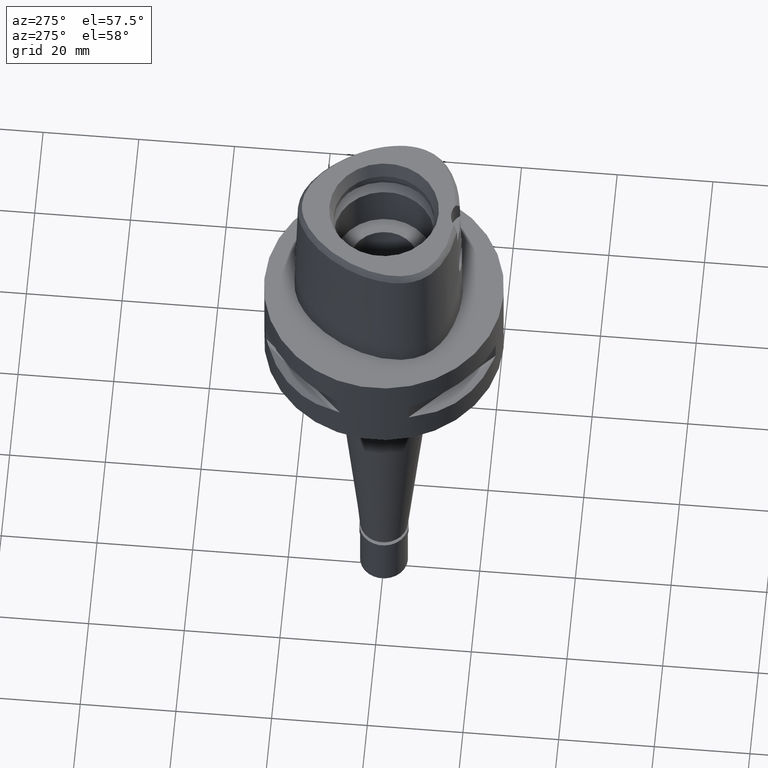
[diagram: clean part render]
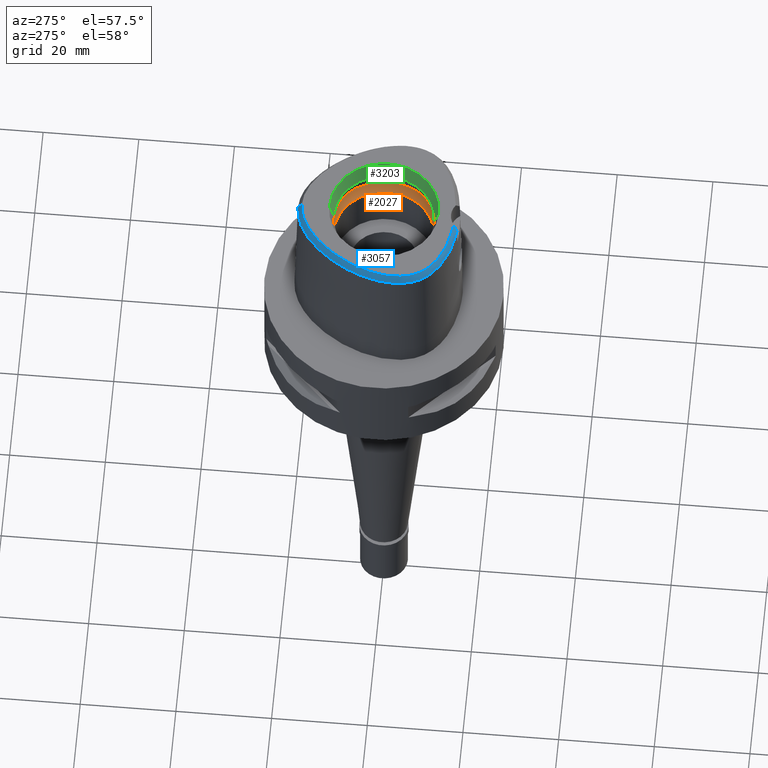
[diagram: same view with three faces highlighted in distinct colors, each labeled with its STEP entity id]
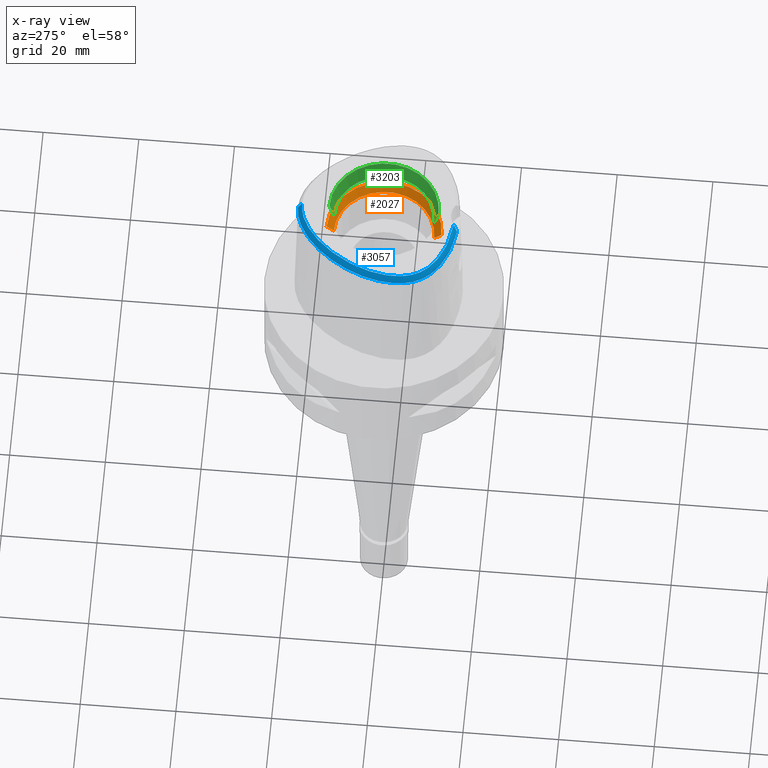
[diagram: x-ray of the same camera — body ghosted, the three highlighted faces saturated]
A machine part, auxiliary view with three faces highlighted in distinct colors.
The next image is the same camera in x-ray (body ghosted, the three faces saturated) — at least one of them is partly hidden behind the body in this view.
Their STEP definitions:

[orange] entity #2027 — the highlighted conical surface has half-angle 45 deg.
#406 = CARTESIAN_POINT ( 'NONE',  ( 0.0000000000000000000, 12.00000000000000000, 21.90089161527999906 ) ) ;
#486 = VERTEX_POINT ( 'NONE', #3220 ) ;
#649 = AXIS2_PLACEMENT_3D ( 'NONE', #4169, #1111, #2990 ) ;
#900 = CARTESIAN_POINT ( 'NONE',  ( 0.0000000000000000000, 1.483670516304999789E-14, 21.90089161527999906 ) ) ;
#1111 = DIRECTION ( 'NONE',  ( 0.0000000000000000000, 0.0000000000000000000, 1.000000000000000000 ) ) ;
#1119 = ORIENTED_EDGE ( 'NONE', *, *, #3971, .T. ) ;
#1422 = CONICAL_SURFACE ( 'NONE', #1811, 11.25000000000000000, 0.7853981633972997312 ) ;
#1482 = VERTEX_POINT ( 'NONE', #4291 ) ;
#1672 = ORIENTED_EDGE ( 'NONE', *, *, #2973, .F. ) ;
#1701 = CARTESIAN_POINT ( 'NONE',  ( 0.0000000000000000000, -10.50000000000000000, 20.40089161527999906 ) ) ;
#1811 = AXIS2_PLACEMENT_3D ( 'NONE', #4452, #2967, #2333 ) ;
#1875 = ORIENTED_EDGE ( 'NONE', *, *, #4474, .F. ) ;
#2005 = EDGE_CURVE ( 'NONE', #3899, #486, #4283, .T. ) ;
#2027 = ADVANCED_FACE ( 'NONE', ( #3010 ), #1422, .F. ) ;
#2277 = EDGE_LOOP ( 'NONE', ( #1875, #1119, #3849, #1672 ) ) ;
#2333 = DIRECTION ( 'NONE',  ( 0.0000000000000000000, 1.000000000000000000, 0.0000000000000000000 ) ) ;
#2420 = VECTOR ( 'NONE', #4780, 1000.000000000000114 ) ;
#2704 = DIRECTION ( 'NONE',  ( 0.0000000000000000000, 0.7071067811865474617, -0.7071067811865474617 ) ) ;
#2758 = DIRECTION ( 'NONE',  ( 0.0000000000000000000, 1.000000000000000000, 0.0000000000000000000 ) ) ;
#2780 = DIRECTION ( 'NONE',  ( 0.0000000000000000000, 0.0000000000000000000, -1.000000000000000000 ) ) ;
#2881 = VECTOR ( 'NONE', #2704, 1000.000000000000114 ) ;
#2921 = LINE ( 'NONE', #406, #2420 ) ;
#2967 = DIRECTION ( 'NONE',  ( 0.0000000000000000000, 0.0000000000000000000, 1.000000000000000000 ) ) ;
#2973 = EDGE_CURVE ( 'NONE', #1482, #3899, #3374, .T. ) ;
#2990 = DIRECTION ( 'NONE',  ( 0.0000000000000000000, -1.000000000000000000, 0.0000000000000000000 ) ) ;
#3010 = FACE_OUTER_BOUND ( 'NONE', #2277, .T. ) ;
#3128 = AXIS2_PLACEMENT_3D ( 'NONE', #900, #2780, #2758 ) ;
#3220 = CARTESIAN_POINT ( 'NONE',  ( 0.0000000000000000000, 10.50000000000000000, 20.40089161527999906 ) ) ;
#3374 = LINE ( 'NONE', #3442, #2881 ) ;
#3442 = CARTESIAN_POINT ( 'NONE',  ( 0.0000000000000000000, -12.00000000000000000, 21.90089161527999906 ) ) ;
#3849 = ORIENTED_EDGE ( 'NONE', *, *, #2005, .F. ) ;
#3880 = VERTEX_POINT ( 'NONE', #4363 ) ;
#3899 = VERTEX_POINT ( 'NONE', #1701 ) ;
#3971 = EDGE_CURVE ( 'NONE', #3880, #486, #2921, .T. ) ;
#4169 = CARTESIAN_POINT ( 'NONE',  ( 0.0000000000000000000, 1.483670516304999789E-14, 20.40089161527999906 ) ) ;
#4283 = CIRCLE ( 'NONE', #649, 10.50000000000000000 ) ;
#4291 = CARTESIAN_POINT ( 'NONE',  ( 0.0000000000000000000, -12.00000000000000000, 21.90089161527999906 ) ) ;
#4363 = CARTESIAN_POINT ( 'NONE',  ( 0.0000000000000000000, 12.00000000000000000, 21.90089161527999906 ) ) ;
#4452 = CARTESIAN_POINT ( 'NONE',  ( 0.0000000000000000000, 1.483670516304999789E-14, 21.15089161527999906 ) ) ;
#4474 = EDGE_CURVE ( 'NONE', #3880, #1482, #4719, .T. ) ;
#4719 = CIRCLE ( 'NONE', #3128, 12.00000000000000000 ) ;
#4780 = DIRECTION ( 'NONE',  ( 0.0000000000000000000, -0.7071067811865474617, -0.7071067811865474617 ) ) ;

[blue] entity #3057 — the highlighted face is a freeform B-spline surface patch.
#16 = CARTESIAN_POINT ( 'NONE',  ( -11.85449009044000057, 9.011503292406001009, 30.15637878581999942 ) ) ;
#37 = CARTESIAN_POINT ( 'NONE',  ( -11.58345987647000008, 10.54187516824999982, 28.96164332916999840 ) ) ;
#56 = CARTESIAN_POINT ( 'NONE',  ( -7.700642921101196414, 13.84415306341368535, 29.99999999999799982 ) ) ;
#57 = CARTESIAN_POINT ( 'NONE',  ( -8.901651592760000398, -13.56634964851000014, 29.55901088555999934 ) ) ;
#82 = CARTESIAN_POINT ( 'NONE',  ( -4.498660734198334232, 15.99814720006281021, 29.99999999999908340 ) ) ;
#85 = CARTESIAN_POINT ( 'NONE',  ( -13.23255850189000071, -11.83726526318000083, 28.36427467868999841 ) ) ;
#107 = CARTESIAN_POINT ( 'NONE',  ( -2.674237912645970106, -15.00654602983763297, 29.59847415412812666 ) ) ;
#108 = CARTESIAN_POINT ( 'NONE',  ( -3.771910472264914382, 16.33551310926166522, 29.99999999999630163 ) ) ;
#109 = CARTESIAN_POINT ( 'NONE',  ( -12.18965241865999971, -11.79359031717000050, 29.55901110125000031 ) ) ;
#136 = CARTESIAN_POINT ( 'NONE',  ( -15.43355893678000079, -7.121679643271999538, 30.15637888211999851 ) ) ;
#140 = CARTESIAN_POINT ( 'NONE',  ( -11.33338053121714850, -13.08225253589606574, 28.52071192347005635 ) ) ;
#163 = CARTESIAN_POINT ( 'NONE',  ( -16.59402944986000250, -6.782580414183000173, 28.36427473218000372 ) ) ;
#166 = CARTESIAN_POINT ( 'NONE',  ( -13.75951393052431904, 7.944084103041955558, 28.52071192347005635 ) ) ;
#195 = CARTESIAN_POINT ( 'NONE',  ( -5.213656566127999881, 15.51079692067999893, 30.15637829171000206 ) ) ;
#211 = CARTESIAN_POINT ( 'NONE',  ( -4.242257001799000449, -15.17389382144999921, 28.96164249563000226 ) ) ;
#217 = CARTESIAN_POINT ( 'NONE',  ( -0.6320141646056000040, 18.05501569523999805, 28.36427460964999980 ) ) ;
#238 = CARTESIAN_POINT ( 'NONE',  ( 0.3266156067013999964, 17.73054850272000138, 28.96164286856000203 ) ) ;
#259 = CARTESIAN_POINT ( 'NONE',  ( -6.892235619470000074, -14.94426334862999894, 28.36427880345000219 ) ) ;
#262 = CARTESIAN_POINT ( 'NONE',  ( -16.85489160761226657, -5.354527567565032342, 28.52071192347005635 ) ) ;
#265 = CARTESIAN_POINT ( 'NONE',  ( -8.958407427298999082, 13.49571848031999899, 28.96164451534999884 ) ) ;
#285 = CARTESIAN_POINT ( 'NONE',  ( -10.08889300208999984, 12.83372184761999968, 28.36427664305999841 ) ) ;
#306 = CARTESIAN_POINT ( 'NONE',  ( -16.47661857384000328, -0.5221629644570000561, 28.96164353778999967 ) ) ;
#334 = CARTESIAN_POINT ( 'NONE',  ( -16.04083576397579947, -1.656498942829044418, 29.99999999999349853 ) ) ;
#336 = CARTESIAN_POINT ( 'NONE',  ( -14.78827924295000074, 4.204707615648000996, 29.55901083216999936 ) ) ;
#361 = CARTESIAN_POINT ( 'NONE',  ( -15.39727819200625802, 1.655076005305519127, 30.00000000000022737 ) ) ;
#363 = CARTESIAN_POINT ( 'NONE',  ( -14.53919839125000024, 5.621544639343000860, 28.96164349151000295 ) ) ;
#385 = CARTESIAN_POINT ( 'NONE',  ( -16.90742036453000452, -5.282604690685999138, 28.36427490836999965 ) ) ;
#409 = CARTESIAN_POINT ( 'NONE',  ( -6.862723739080156982, 14.51536572208542708, 30.00000000000209965 ) ) ;
#411 = CARTESIAN_POINT ( 'NONE',  ( -16.27982495361000304, 1.903506352979000171, 28.36427837258000295 ) ) ;
#416 = CARTESIAN_POINT ( 'NONE',  ( 0.4586054201233999983, 17.05353403294000003, 30.15637893910000145 ) ) ;
#431 = CARTESIAN_POINT ( 'NONE',  ( -2.411640998825414162, 16.81591728050937107, 29.99999999999823430 ) ) ;
#432 = CARTESIAN_POINT ( 'NONE',  ( -11.03811784440999944, -13.30293777031000069, 28.36427474825000061 ) ) ;
#455 = CARTESIAN_POINT ( 'NONE',  ( -14.79025911483000044, -10.28768672424999941, 28.36427535253999821 ) ) ;
#484 = CARTESIAN_POINT ( 'NONE',  ( -14.33216694691000015, -10.81101575921000091, 28.36427475559000300 ) ) ;
#507 = CARTESIAN_POINT ( 'NONE',  ( -16.13424403715000111, -8.084696325639999515, 28.36427519935000063 ) ) ;
#533 = CARTESIAN_POINT ( 'NONE',  ( -14.68836182623000042, -8.699025554961000495, 30.15637889597000054 ) ) ;
#581 = CARTESIAN_POINT ( 'NONE',  ( -3.168920966622999824, -15.55911077538999976, 28.52071192346999950 ) ) ;
#588 = CARTESIAN_POINT ( 'NONE',  ( -6.184650785969999731, 15.29958322959999961, 29.55901192772000030 ) ) ;
#601 = CARTESIAN_POINT ( 'NONE',  ( -4.136676695918000135, -14.51261939415000057, 30.15637896186999711 ) ) ;
#603 = CARTESIAN_POINT ( 'NONE',  ( -4.422474562381692564, 17.08283562090188212, 28.52071192347005635 ) ) ;
#606 = CARTESIAN_POINT ( 'NONE',  ( -6.556570469133999879, 15.85654306089999821, 28.36427870975999710 ) ) ;
#630 = CARTESIAN_POINT ( 'NONE',  ( -16.08550869467322286, -4.376322360225803010, 30.00000000000392930 ) ) ;
#631 = CARTESIAN_POINT ( 'NONE',  ( -3.047966609381999703, 16.52305199151999915, 30.15637900589000253 ) ) ;
#654 = CARTESIAN_POINT ( 'NONE',  ( -12.04571048959943269, -11.59259605427425122, 30.00000000000039080 ) ) ;
#655 = CARTESIAN_POINT ( 'NONE',  ( -1.961401802194999933, 17.86945691829000182, 28.36427515685999978 ) ) ;
#675 = CARTESIAN_POINT ( 'NONE',  ( -15.51623783590678940, -7.150856098906794855, 29.99999999999204903 ) ) ;
#677 = CARTESIAN_POINT ( 'NONE',  ( -15.99810560885000044, -4.369539868912998948, 30.15637881170000156 ) ) ;
#700 = CARTESIAN_POINT ( 'NONE',  ( -2.406542353497000075, -14.80491723099000012, 30.00000000000000000 ) ) ;
#701 = CARTESIAN_POINT ( 'NONE',  ( -16.44286601343999976, -5.991043962840000070, 28.96164272796000105 ) ) ;
#726 = CARTESIAN_POINT ( 'NONE',  ( -15.90223487644045619, -0.6162487013687821813, 29.99999999999139888 ) ) ;
#727 = CARTESIAN_POINT ( 'NONE',  ( -13.18530981801000124, 8.169366053974998820, 28.96164285982999687 ) ) ;
#744 = CARTESIAN_POINT ( 'NONE',  ( -16.77070615170000067, -6.059465517459999617, 28.36427462849999870 ) ) ;
#769 = CARTESIAN_POINT ( 'NONE',  ( -15.81573140731999949, -0.6304182237184999815, 30.15637880491000189 ) ) ;
#799 = CARTESIAN_POINT ( 'NONE',  ( -11.84982355095999829, -12.82801559877999864, 28.36427544980000093 ) ) ;
#821 = CARTESIAN_POINT ( 'NONE',  ( -15.21180331474000091, -7.686336543309999492, 30.15637887229999947 ) ) ;
#841 = CARTESIAN_POINT ( 'NONE',  ( -8.067688644478000271, -14.58611186006000082, 28.36427808795000161 ) ) ;
#850 = VERTEX_POINT ( 'NONE', #3771 ) ;
#871 = CARTESIAN_POINT ( 'NONE',  ( -11.67222070731000017, -12.54411384152999887, 28.96164324932000156 ) ) ;
#875 = CARTESIAN_POINT ( 'NONE',  ( -3.168920966622999824, -15.55911077538999976, 28.52071192346999950 ) ) ;
#897 = CARTESIAN_POINT ( 'NONE',  ( -12.80858359052000139, -11.31873791347000058, 29.55901084095000186 ) ) ;
#919 = CARTESIAN_POINT ( 'NONE',  ( -15.07117015427825635, -9.793013966485284882, 28.52071192347005635 ) ) ;
#948 = CARTESIAN_POINT ( 'NONE',  ( -5.551456711844000580, 16.08910894061000008, 28.96164694548000185 ) ) ;
#970 = CARTESIAN_POINT ( 'NONE',  ( -1.754857535134000113, 16.88615794000000037, 30.15637887636000158 ) ) ;
#984 = CARTESIAN_POINT ( 'NONE',  ( -5.560531618053000003, -14.92601439050000067, 28.96164355768999599 ) ) ;
#989 = CARTESIAN_POINT ( 'NONE',  ( -0.5851856919394999856, 17.38678452923999984, 29.55901082234000299 ) ) ;
#1007 = CARTESIAN_POINT ( 'NONE',  ( -5.419403907101999707, -14.27139570519999978, 30.15637880191999898 ) ) ;
#1012 = CARTESIAN_POINT ( 'NONE',  ( -3.737434157205000052, 16.25490903937999931, 30.15637881670000198 ) ) ;
#1022 = VERTEX_POINT ( 'NONE', #4366 ) ;
#1039 = CARTESIAN_POINT ( 'NONE',  ( -3.123276563984344278, -14.73562494724770922, 29.99999999999987921 ) ) ;
#1040 = CARTESIAN_POINT ( 'NONE',  ( 0.3389740195738999984, 18.06503942157000253, 28.36427484999000015 ) ) ;
#1055 = EDGE_CURVE ( 'NONE', #2581, #2325, #2896, .T. ) ;
#1060 = CARTESIAN_POINT ( 'NONE',  ( -14.08052509618191905, -9.706873108418225371, 29.99999999999800337 ) ) ;
#1061 = CARTESIAN_POINT ( 'NONE',  ( -13.89833258612999956, 6.908803950693000573, 28.96164308943999899 ) ) ;
#1089 = CARTESIAN_POINT ( 'NONE',  ( -6.650243356160449260, -14.05992414833770177, 30.00000000000150280 ) ) ;
#1091 = CARTESIAN_POINT ( 'NONE',  ( -16.80706215710000251, -0.4680353348262000224, 28.36427590421999767 ) ) ;
#1117 = CARTESIAN_POINT ( 'NONE',  ( -16.57584441994999835, -5.235577929643000061, 28.96164290562000332 ) ) ;
#1136 = CARTESIAN_POINT ( 'NONE',  ( -11.11900396222353571, 10.19116357425808062, 30.00000000000019185 ) ) ;
#1137 = CARTESIAN_POINT ( 'NONE',  ( -17.04228370709000018, -3.550021519980000040, 28.36427507147000071 ) ) ;
#1160 = CARTESIAN_POINT ( 'NONE',  ( -16.61971919964999955, -1.595838385915999913, 28.96164250150000186 ) ) ;
#1184 = CARTESIAN_POINT ( 'NONE',  ( -16.38106007050000201, -7.456042159994000329, 28.36427509661000101 ) ) ;
#1206 = CARTESIAN_POINT ( 'NONE',  ( -7.748921943555000524, -13.63350580382999944, 30.15637859615000238 ) ) ;
#1229 = CARTESIAN_POINT ( 'NONE',  ( -14.27186835164999934, -9.863459611464000076, 29.55901102261999824 ) ) ;
#1253 = CARTESIAN_POINT ( 'NONE',  ( -2.935844349977490886, -15.25651563091944674, 29.10537812861812768 ) ) ;
#1255 = CARTESIAN_POINT ( 'NONE',  ( -14.96360004622999895, -8.209593979785999807, 30.15637894213999814 ) ) ;
#1260 = CARTESIAN_POINT ( 'NONE',  ( -0.6295828121025521806, 17.98203011041698218, 28.52071192347005990 ) ) ;
#1273 = B_SPLINE_SURFACE_WITH_KNOTS ( 'NONE', 3, 3, ( 
 ( #416, #3074, #4534, #1481 ),
 ( #2980, #4628, #238, #1040 ),
 ( #4301, #1308, #3961, #4273 ),
 ( #3581, #989, #1402, #217 ),
 ( #3629, #3923, #2875, #1705 ),
 ( #970, #2463, #3988, #655 ),
 ( #3206, #2902, #4321, #4648 ),
 ( #631, #4341, #4369, #3185 ),
 ( #1012, #3563, #3231, #2443 ),
 ( #2509, #2532, #4010, #2805 ),
 ( #195, #3942, #948, #2059 ),
 ( #4671, #588, #1331, #606 ),
 ( #2077, #2484, #2833, #2099 ),
 ( #3606, #2856, #1727, #1355 ),
 ( #2144, #2122, #265, #1375 ),
 ( #1754, #3252, #4690, #285 ),
 ( #4713, #1776, #3273, #3545 ),
 ( #1684, #2233, #37, #4078 ),
 ( #16, #2215, #2624, #1830 ),
 ( #1523, #3717, #727, #3676 ),
 ( #3015, #2926, #1061, #3740 ),
 ( #4032, #1429, #363, #4098 ),
 ( #3391, #336, #3369, #3324 ),
 ( #4410, #4436, #2257, #3698 ),
 ( #4479, #4762, #3345, #411 ),
 ( #1502, #1449, #1874, #2948 ),
 ( #769, #1902, #306, #1091 ),
 ( #2975, #2580, #1160, #2604 ),
 ( #2648, #1803, #4785, #2995 ),
 ( #1852, #2550, #4058, #1137 ),
 ( #677, #3299, #1473, #3650 ),
 ( #2166, #4739, #1117, #385 ),
 ( #4388, #2190, #701, #744 ),
 ( #4458, #3821, #3869, #163 ),
 ( #136, #3436, #1654, #1184 ),
 ( #821, #3040, #1598, #507 ),
 ( #1255, #3464, #4507, #2028 ),
 ( #533, #4551, #3516, #3787 ),
 ( #1622, #4122, #2393, #3847 ),
 ( #2755, #1229, #3118, #455 ),
 ( #1980, #4577, #2312, #484 ),
 ( #2001, #3090, #1280, #4228 ),
 ( #3152, #897, #2726, #85 ),
 ( #2679, #109, #4150, #1951 ),
 ( #4601, #4199, #871, #799 ),
 ( #2288, #3765, #2369, #432 ),
 ( #1922, #1575, #3411, #3068 ),
 ( #3489, #57, #1547, #4529 ),
 ( #1206, #2699, #4173, #841 ),
 ( #2339, #2436, #3558, #259 ),
 ( #1007, #2479, #984, #4685 ),
 ( #601, #1371, #211, #2777 ),
 ( #4641, #2502, #3199, #2049 ),
 ( #1770, #2869, #3956, #3598 ),
 ( #4316, #2139, #1350, #4335 ),
 ( #4293, #3980, #3917, #3179 ) ),
 .UNSPECIFIED., .F., .F., .F.,
 ( 4, 1, 1, 1, 1, 1, 1, 1, 1, 1, 1, 1, 1, 1, 1, 1, 1, 1, 1, 1, 1, 1, 1, 1, 1, 1, 1, 1, 1, 1, 1, 1, 1, 1, 1, 1, 1, 1, 1, 1, 1, 1, 1, 1, 1, 1, 1, 1, 1, 1, 1, 1, 1, 4 ),
 ( 4, 4 ),
 ( -0.01581534407490000141, 0.0000000000000000000, 0.01988866185210999907, 0.03977732370550000202, 0.05966598555888999456, 0.07955464741227999403, 0.09944330926566999351, 0.1193319711189999993, 0.1392206329725000080, 0.1591092948258999995, 0.1789979566792000154, 0.1988866185326000069, 0.2187752803859999984, 0.2386639422393999899, 0.2585526040928000091, 0.2784412659462000006, 0.2983299277995000165, 0.3182185896529999836, 0.3381072515063999750, 0.3579959133596999910, 0.3778845752130999824, 0.3977732370665000294, 0.4176618989199999965, 0.4375505607732999569, 0.4574392226267000039, 0.4773278844800999954, 0.4972165463333999558, 0.5171052081869000894, 0.5369938700402999698, 0.5568825318935999302, 0.5767711937470000327, 0.5966598556004999443, 0.6165485174538000157, 0.6364371793072000072, 0.6563258411605999987, 0.6762145030139999902, 0.6961031648674000927, 0.7159918267207999731, 0.7358804885742000756, 0.7557691504275000360, 0.7756578122808999165, 0.7955464741344000501, 0.8154351359877000105, 0.8353237978411000020, 0.8552124596944999935, 0.8751011215478000649, 0.8949897834012999764, 0.9148784452547000789, 0.9347671071080999594, 0.9546557689613999198, 0.9745444308149000534, 0.9944330926682999339, 1.000000000000000000, 1.006911813929000088 ),
 ( -0.08241540673198000100, 1.082450937420999848 ),
 .UNSPECIFIED. ) ;
#1280 = CARTESIAN_POINT ( 'NONE',  ( -13.58626390693999930, -11.08290294602999992, 28.96164276307000307 ) ) ;
#1308 = CARTESIAN_POINT ( 'NONE',  ( -0.04216997820047999751, 17.40573650737000122, 29.55901095476999885 ) ) ;
#1331 = CARTESIAN_POINT ( 'NONE',  ( -6.370610627551999805, 15.57806314525000069, 28.96164531874000048 ) ) ;
#1350 = CARTESIAN_POINT ( 'NONE',  ( -2.130977356212000018, -15.41245499427999910, 28.96164344221000064 ) ) ;
#1355 = CARTESIAN_POINT ( 'NONE',  ( -8.294830065894000626, 14.54244207726000049, 28.36427537868999593 ) ) ;
#1371 = CARTESIAN_POINT ( 'NONE',  ( -4.189466848858000247, -14.84325660780000078, 29.55901072874999969 ) ) ;
#1375 = CARTESIAN_POINT ( 'NONE',  ( -9.189378586825998951, 13.73813974064000121, 28.36427744416999985 ) ) ;
#1402 = CARTESIAN_POINT ( 'NONE',  ( -0.6085999282724999793, 17.72090011223999895, 28.96164271599000273 ) ) ;
#1428 = CARTESIAN_POINT ( 'NONE',  ( -16.12543283908518887, -3.535877041748772598, 29.99999999999869615 ) ) ;
#1429 = CARTESIAN_POINT ( 'NONE',  ( -14.23566317577000007, 5.480226159271999187, 29.55901115169999827 ) ) ;
#1449 = CARTESIAN_POINT ( 'NONE',  ( -15.93107661840999967, 0.5433826346340000502, 29.55901195767000189 ) ) ;
#1472 = CARTESIAN_POINT ( 'NONE',  ( -15.02099409650763917, 2.867135356160126047, 29.99999999999533529 ) ) ;
#1473 = CARTESIAN_POINT ( 'NONE',  ( -16.66586585385999797, -4.421358154481999314, 28.96164349280000039 ) ) ;
#1481 = CARTESIAN_POINT ( 'NONE',  ( 0.5139609798986000122, 18.05595244239999886, 28.36427450065000144 ) ) ;
#1500 = CARTESIAN_POINT ( 'NONE',  ( -10.27907733182420458, 11.24278573583118224, 29.99999999999558753 ) ) ;
#1502 = CARTESIAN_POINT ( 'NONE',  ( -15.60423018745999890, 0.4706591707407999925, 30.15637852608000102 ) ) ;
#1522 = CARTESIAN_POINT ( 'NONE',  ( -6.303691439142001614E-11, 17.15328888647999861, 30.00000000000000000 ) ) ;
#1523 = CARTESIAN_POINT ( 'NONE',  ( -12.61135220943000057, 7.824419462285001181, 30.15637890701999879 ) ) ;
#1547 = CARTESIAN_POINT ( 'NONE',  ( -9.025823316317000078, -13.87732540933999914, 28.96164286487000084 ) ) ;
#1575 = CARTESIAN_POINT ( 'NONE',  ( -9.855071679929000794, -13.15194332543000044, 29.55901081030000199 ) ) ;
#1598 = CARTESIAN_POINT ( 'NONE',  ( -15.82676379635000075, -7.951909731529999803, 28.96164309032999995 ) ) ;
#1622 = CARTESIAN_POINT ( 'NONE',  ( -14.37461473836000003, -9.175934782587999550, 30.15637891933999626 ) ) ;
#1654 = CARTESIAN_POINT ( 'NONE',  ( -16.06522635925999865, -7.344587987753000036, 28.96164302511999722 ) ) ;
#1680 = CARTESIAN_POINT ( 'NONE',  ( -1.893775706183291163, 17.84807082153813340, 28.52071192347005635 ) ) ;
#1684 = CARTESIAN_POINT ( 'NONE',  ( -11.04905586304000131, 10.13834562403000028, 30.15637883634000005 ) ) ;
#1705 = CARTESIAN_POINT ( 'NONE',  ( -1.287180812731999913, 17.98688405530999646, 28.36427454473000154 ) ) ;
#1727 = CARTESIAN_POINT ( 'NONE',  ( -8.077832486964000580, 14.28742641977999916, 28.96164320418000315 ) ) ;
#1753 = CARTESIAN_POINT ( 'NONE',  ( -9.750168658358708385, -12.92810664733890924, 29.99999999999771916 ) ) ;
#1754 = CARTESIAN_POINT ( 'NONE',  ( -9.356988247245999091, 12.14573789780000013, 30.15637873428000049 ) ) ;
#1770 = CARTESIAN_POINT ( 'NONE',  ( -2.368129217334999925, -14.72161775253000116, 30.15637882022000227 ) ) ;
#1776 = CARTESIAN_POINT ( 'NONE',  ( -10.46808936523000000, 11.40206575475000150, 29.55901073999000062 ) ) ;
#1801 = CARTESIAN_POINT ( 'NONE',  ( -13.66338899148576935, -10.18351204678566724, 29.99999999999759126 ) ) ;
#1803 = CARTESIAN_POINT ( 'NONE',  ( -16.35979082188000078, -2.618730303854000407, 29.55901087357000279 ) ) ;
#1830 = CARTESIAN_POINT ( 'NONE',  ( -12.68700402592999943, 9.573516033598000519, 28.36427610394999732 ) ) ;
#1851 = CARTESIAN_POINT ( 'NONE',  ( -10.60021164903016455, -12.49731984708418331, 29.99999999999602807 ) ) ;
#1852 = CARTESIAN_POINT ( 'NONE',  ( -16.03777988869000026, -3.534524798661000222, 30.15637888453000315 ) ) ;
#1874 = CARTESIAN_POINT ( 'NONE',  ( -16.25792304935999866, 0.6161060985271999968, 28.96164538925999921 ) ) ;
#1900 = CARTESIAN_POINT ( 'NONE',  ( -11.92713521269460486, 9.060544494662607917, 29.99999999999561950 ) ) ;
#1902 = CARTESIAN_POINT ( 'NONE',  ( -16.14617499058000405, -0.5762905940878000344, 29.55901117135000078 ) ) ;
#1921 = CARTESIAN_POINT ( 'NONE',  ( -0.5679008307148645240, 17.14013367087201445, 29.99999999999691980 ) ) ;
#1922 = CARTESIAN_POINT ( 'NONE',  ( -9.712969055829001164, -12.84873204656999945, 30.15637893294999827 ) ) ;
#1951 = CARTESIAN_POINT ( 'NONE',  ( -12.57962261268000148, -12.33812777201999999, 28.36427564419999925 ) ) ;
#1965 = EDGE_CURVE ( 'NONE', #850, #2325, #3429, .T. ) ;
#1980 = CARTESIAN_POINT ( 'NONE',  ( -13.59945235467999858, -10.12352131797999988, 30.15637891472999854 ) ) ;
#2001 = CARTESIAN_POINT ( 'NONE',  ( -13.12935502717000169, -10.59312267811000119, 30.15637892159000089 ) ) ;
#2028 = CARTESIAN_POINT ( 'NONE',  ( -15.85633102002000072, -8.670777717522001993, 28.36427446887000059 ) ) ;
#2031 = CARTESIAN_POINT ( 'NONE',  ( -14.26907056455488920, -10.79012254419288652, 28.52071192347005635 ) ) ;
#2049 = CARTESIAN_POINT ( 'NONE',  ( -3.231023599034000160, -15.64584878859999861, 28.36427546280999934 ) ) ;
#2059 = CARTESIAN_POINT ( 'NONE',  ( -5.720356784703000130, 16.37826495056999931, 28.36428127235999952 ) ) ;
#2077 = CARTESIAN_POINT ( 'NONE',  ( -6.809847197070999947, 14.44545180630000125, 30.15637896758000025 ) ) ;
#2096 = CARTESIAN_POINT ( 'NONE',  ( -3.096462930624999809E-11, 17.98202997909999823, 28.52071728569000086 ) ) ;
#2099 = CARTESIAN_POINT ( 'NONE',  ( -7.415812975886000302, 15.24666608428000103, 28.36427420284000078 ) ) ;
#2121 = CARTESIAN_POINT ( 'NONE',  ( -14.55898035934000845, 4.112421202110700946, 29.99999999999403855 ) ) ;
#2122 = CARTESIAN_POINT ( 'NONE',  ( -8.727436267771000900, 13.25329722001000121, 29.55901158652000049 ) ) ;
#2139 = CARTESIAN_POINT ( 'NONE',  ( -2.104870574242999837, -15.07880417992999966, 29.55901113075999831 ) ) ;
#2143 = CARTESIAN_POINT ( 'NONE',  ( -15.04149970407941517, -8.249836848500626374, 29.99999999999880629 ) ) ;
#2144 = CARTESIAN_POINT ( 'NONE',  ( -8.496465108243999254, 13.01087595969000077, 30.15637865768999859 ) ) ;
#2165 = CARTESIAN_POINT ( 'NONE',  ( -7.776737509122992442, -13.71663015822516662, 29.99999999999842615 ) ) ;
#2166 = CARTESIAN_POINT ( 'NONE',  ( -15.91269253081000201, -5.141524407558000220, 30.15637890013000089 ) ) ;
#2188 = CARTESIAN_POINT ( 'NONE',  ( -12.65209017756130017, -11.12734424253315169, 29.99999999999660361 ) ) ;
#2190 = CARTESIAN_POINT ( 'NONE',  ( -16.11502587517000151, -5.922622408220000523, 29.55901082741999986 ) ) ;
#2213 = CARTESIAN_POINT ( 'NONE',  ( -15.68979199461596430, 0.4896967076515053030, 29.99999999999620215 ) ) ;
#2215 = CARTESIAN_POINT ( 'NONE',  ( -12.13199473561000019, 9.198840872804000313, 29.55901122519999547 ) ) ;
#2233 = CARTESIAN_POINT ( 'NONE',  ( -11.31625786974999848, 10.34011039614000005, 29.55901108275000055 ) ) ;
#2257 = CARTESIAN_POINT ( 'NONE',  ( -15.57180710863999984, 3.055108764494999907, 28.96164285995000043 ) ) ;
#2288 = CARTESIAN_POINT ( 'NONE',  ( -10.55834685797000105, -12.42030100975000018, 30.15637891543000038 ) ) ;
#2312 = CARTESIAN_POINT ( 'NONE',  ( -14.08792874949999963, -10.58185094547000027, 28.96164280863999707 ) ) ;
#2325 = VERTEX_POINT ( 'NONE', #4710 ) ;
#2339 = CARTESIAN_POINT ( 'NONE',  ( -6.627108365954000213, -13.97537938456000006, 30.15637852775000027 ) ) ;
#2352 = EDGE_LOOP ( 'NONE', ( #3184, #2778, #3169, #2756 ) ) ;
#2369 = CARTESIAN_POINT ( 'NONE',  ( -10.87819418225999968, -13.00872551678999933, 28.96164280397999846 ) ) ;
#2374 = CARTESIAN_POINT ( 'NONE',  ( -3.738627773282400923, -15.49270868799979262, 28.52071192347005635 ) ) ;
#2393 = CARTESIAN_POINT ( 'NONE',  ( -14.92090125552999957, -9.563599024994999809, 28.96164277796000164 ) ) ;
#2396 = CARTESIAN_POINT ( 'NONE',  ( -16.47905549557562921, -6.962316292879772384, 28.52071192347005635 ) ) ;
#2415 = CARTESIAN_POINT ( 'NONE',  ( -7.523733151595097368, 15.26501052509751233, 28.52071192347005635 ) ) ;
#2436 = CARTESIAN_POINT ( 'NONE',  ( -6.715484117126000463, -14.29834070591000028, 29.55901195298000061 ) ) ;
#2443 = CARTESIAN_POINT ( 'NONE',  ( -4.132533123817999865, 17.17863260609999898, 28.36427578098000168 ) ) ;
#2459 = CARTESIAN_POINT ( 'NONE',  ( -15.58740380354039345, -8.999391780896928594, 28.52071192347005635 ) ) ;
#2463 = CARTESIAN_POINT ( 'NONE',  ( -1.823705624155000038, 17.21392426609999760, 29.55901096985999743 ) ) ;
#2479 = CARTESIAN_POINT ( 'NONE',  ( -5.489967762576999810, -14.59870504785000023, 29.55901117980999970 ) ) ;
#2484 = CARTESIAN_POINT ( 'NONE',  ( -7.011835790009000036, 14.71252323230000059, 29.55901071266000102 ) ) ;
#2502 = CARTESIAN_POINT ( 'NONE',  ( -3.152325007363000253, -14.98101996626999899, 29.55901105234999804 ) ) ;
#2509 = CARTESIAN_POINT ( 'NONE',  ( -4.459183321422999668, 15.91987411968999844, 30.15637841435000155 ) ) ;
#2531 = CARTESIAN_POINT ( 'NONE',  ( -13.18915979441861808, -10.65722997876302891, 29.99999999999612754 ) ) ;
#2532 = CARTESIAN_POINT ( 'NONE',  ( -4.609987189382999340, 16.21887758641999966, 29.55901227275999688 ) ) ;
#2549 = CARTESIAN_POINT ( 'NONE',  ( -15.71065119878977967, -6.536303815289670638, 29.99999999999177192 ) ) ;
#2550 = CARTESIAN_POINT ( 'NONE',  ( -16.37261449481999875, -3.539690372434000309, 29.55901094684999819 ) ) ;
#2577 = CARTESIAN_POINT ( 'NONE',  ( -11.36350786441574279, -12.05063008428401616, 29.99999999999642597 ) ) ;
#2580 = CARTESIAN_POINT ( 'NONE',  ( -16.28668691193000129, -1.630736472125000169, 29.55901073124000078 ) ) ;
#2581 = VERTEX_POINT ( 'NONE', #4244 ) ;
#2604 = CARTESIAN_POINT ( 'NONE',  ( -16.95275148737000137, -1.560940299706999879, 28.36427427176000293 ) ) ;
#2624 = CARTESIAN_POINT ( 'NONE',  ( -12.40949938076999892, 9.386178453200999527, 28.96164366458000217 ) ) ;
#2648 = CARTESIAN_POINT ( 'NONE',  ( -16.02526866592999966, -2.633870910328999670, 30.15637891050999997 ) ) ;
#2679 = CARTESIAN_POINT ( 'NONE',  ( -11.99466732164999883, -11.52132158974000120, 30.15637882978000306 ) ) ;
#2683 = CARTESIAN_POINT ( 'NONE',  ( -5.902447850708282928, -15.16907854011943080, 28.52071192347005990 ) ) ;
#2689 = EDGE_CURVE ( 'NONE', #2581, #1022, #3817, .T. ) ;
#2699 = CARTESIAN_POINT ( 'NONE',  ( -7.855177510529999907, -13.95104115589999871, 29.55901176007999709 ) ) ;
#2726 = CARTESIAN_POINT ( 'NONE',  ( -13.02057104620999972, -11.57800158831999937, 28.96164275982000191 ) ) ;
#2755 = CARTESIAN_POINT ( 'NONE',  ( -14.01267297006000057, -9.651346055073000585, 30.15637885765999826 ) ) ;
#2756 = ORIENTED_EDGE ( 'NONE', *, *, #2689, .F. ) ;
#2777 = CARTESIAN_POINT ( 'NONE',  ( -4.295047154738999673, -15.50453103509999941, 28.36427426251000128 ) ) ;
#2778 = ORIENTED_EDGE ( 'NONE', *, *, #1965, .F. ) ;
#2805 = CARTESIAN_POINT ( 'NONE',  ( -4.911594925301000281, 16.81688451988999944, 28.36427998958999908 ) ) ;
#2828 = CARTESIAN_POINT ( 'NONE',  ( -10.91764528035608528, 11.98972044748918542, 28.52071192347005635 ) ) ;
#2833 = CARTESIAN_POINT ( 'NONE',  ( -7.213824382948000213, 14.97959465829000081, 28.96164245774999912 ) ) ;
#2856 = CARTESIAN_POINT ( 'NONE',  ( -7.860834908035000623, 14.03241076229000051, 29.55901102966999971 ) ) ;
#2869 = CARTESIAN_POINT ( 'NONE',  ( -2.397916414742000235, -15.05496936442999889, 29.55901112820000165 ) ) ;
#2875 = CARTESIAN_POINT ( 'NONE',  ( -1.240789598392999959, 17.65518612593999848, 28.96164267478000198 ) ) ;
#2896 = B_SPLINE_CURVE_WITH_KNOTS ( 'NONE', 3,
 ( #700, #4737, #1039, #3986, #3960, #1089, #2165, #2925, #1753, #1851, #2577, #654, #2188, #2531, #1801, #1060, #4009, #3344, #2143, #3322, #675, #2549, #3628, #4056, #630, #1428, #3673, #334, #726, #2213, #361, #1472, #2121, #3604, #3250, #3786, #1900, #1136, #1500, #3738, #3763, #56, #409, #3088, #4505, #82, #108, #3716, #431, #3435, #4097, #1921, #2994, #1522 ),
 .UNSPECIFIED., .F., .F.,
 ( 4, 1, 1, 1, 1, 1, 1, 1, 1, 1, 1, 1, 1, 1, 1, 1, 1, 1, 1, 1, 1, 1, 1, 1, 1, 1, 1, 1, 1, 1, 1, 1, 1, 1, 1, 1, 1, 1, 1, 1, 1, 1, 1, 1, 1, 1, 1, 1, 1, 1, 1, 4 ),
 ( 0.0000000000000000000, 0.005566907331700066131, 0.02545556918509994659, 0.04534423103860008020, 0.06523289289190004059, 0.08512155474529992105, 0.1050102165987000236, 0.1248988784521999351, 0.1447875403055000065, 0.1646762021588999980, 0.1845648640122999895, 0.2044535258655999499, 0.2243421877191000835, 0.2442308495724999640, 0.2641195114257999244, 0.2840081732792000269, 0.3038968351325999073, 0.3237854969860000098, 0.3436741588394000013, 0.3635628206927999928, 0.3834514825461999843, 0.4033401443995000557, 0.4232288062529999673, 0.4431174681064000698, 0.4630061299597000302, 0.4828947918130999106, 0.5027834536666000442, 0.5226721155199000046, 0.5425607773732999961, 0.5624494392267000986, 0.5823381010799999480, 0.6022267629334999706, 0.6221154247869000731, 0.6420040866403000646, 0.6618927484936000250, 0.6817814103470000164, 0.7016700722005000390, 0.7215587340537999994, 0.7414473959071999909, 0.7613360577605999824, 0.7812247196139999739, 0.8011133814673999654, 0.8210020433207999568, 0.8408907051741000283, 0.8607793670275000197, 0.8806680288810000423, 0.9005566907343299787, 0.9204453525877199782, 0.9403340144411099777, 0.9602226762944999772, 0.9801113381478899766, 1.000000000000000000 ),
 .UNSPECIFIED. ) ;
#2902 = CARTESIAN_POINT ( 'NONE',  ( -2.478534867191000135, 17.05393288842000032, 29.55901082992999918 ) ) ;
#2925 = CARTESIAN_POINT ( 'NONE',  ( -8.809985523415976516, -13.33678107331448359, 29.99999999999617373 ) ) ;
#2926 = CARTESIAN_POINT ( 'NONE',  ( -13.60266584286000047, 6.751688769599999418, 29.55901098093999835 ) ) ;
#2948 = CARTESIAN_POINT ( 'NONE',  ( -16.58476948032000209, 0.6888295624202999123, 28.36427882085000007 ) ) ;
#2975 = CARTESIAN_POINT ( 'NONE',  ( -15.95365462421000124, -1.665634558333999982, 30.15637896097999970 ) ) ;
#2980 = CARTESIAN_POINT ( 'NONE',  ( 0.3018987809563999924, 17.06156666500000085, 30.15637890569999868 ) ) ;
#2994 = CARTESIAN_POINT ( 'NONE',  ( -0.1909045559980051820, 17.15328888648189931, 29.99999999999740297 ) ) ;
#2995 = CARTESIAN_POINT ( 'NONE',  ( -17.02883513379000036, -2.588449090904000105, 28.36427479970000221 ) ) ;
#3015 = CARTESIAN_POINT ( 'NONE',  ( -13.30699909958000049, 6.594573588507999240, 30.15637887244000126 ) ) ;
#3040 = CARTESIAN_POINT ( 'NONE',  ( -15.51928355555000039, -7.819123137420000091, 29.55901098131999660 ) ) ;
#3057 = ADVANCED_FACE ( 'NONE', ( #3745 ), #1273, .F. ) ;
#3068 = CARTESIAN_POINT ( 'NONE',  ( -10.13927692813000014, -13.75836588315999975, 28.36427456501000322 ) ) ;
#3074 = CARTESIAN_POINT ( 'NONE',  ( 0.4770572733818000399, 17.38767350275999846, 29.55901079294999789 ) ) ;
#3088 = CARTESIAN_POINT ( 'NONE',  ( -6.047371482395383246, 15.09400374235729814, 29.99999999999579714 ) ) ;
#3090 = CARTESIAN_POINT ( 'NONE',  ( -13.35780946705000005, -10.83801281207000144, 29.55901084233000020 ) ) ;
#3118 = CARTESIAN_POINT ( 'NONE',  ( -14.53106373323999989, -10.07557316785000090, 28.96164318757999823 ) ) ;
#3152 = CARTESIAN_POINT ( 'NONE',  ( -12.59659613484000040, -11.05947423860999912, 30.15637892208000181 ) ) ;
#3155 = CARTESIAN_POINT ( 'NONE',  ( -16.79165457291277974, -0.3537785057482520368, 28.52071192347005635 ) ) ;
#3169 = ORIENTED_EDGE ( 'NONE', *, *, #4409, .F. ) ;
#3179 = CARTESIAN_POINT ( 'NONE',  ( -1.990199901231000101, -15.75814192051999996, 28.36427573226999854 ) ) ;
#3184 = ORIENTED_EDGE ( 'NONE', *, *, #1055, .T. ) ;
#3185 = CARTESIAN_POINT ( 'NONE',  ( -3.382729575742000172, 17.47034436888000286, 28.36427380214999872 ) ) ;
#3199 = CARTESIAN_POINT ( 'NONE',  ( -3.191674303197999940, -15.31343437742999924, 28.96164325758000047 ) ) ;
#3206 = CARTESIAN_POINT ( 'NONE',  ( -2.387919801116999974, 16.73151469727000062, 30.15637892598999770 ) ) ;
#3231 = CARTESIAN_POINT ( 'NONE',  ( -4.000833468280000638, 16.87072475052999820, 28.96164345955000030 ) ) ;
#3250 = CARTESIAN_POINT ( 'NONE',  ( -13.38439869301399199, 6.635703175839886114, 29.99999999999791456 ) ) ;
#3252 = CARTESIAN_POINT ( 'NONE',  ( -9.600956498859998689, 12.37506588106999850, 29.55901137054000216 ) ) ;
#3273 = CARTESIAN_POINT ( 'NONE',  ( -10.72412685138999855, 11.61782797318999982, 28.96164252209999646 ) ) ;
#3299 = CARTESIAN_POINT ( 'NONE',  ( -16.33198573135999965, -4.395449011698000064, 29.55901115225000098 ) ) ;
#3322 = CARTESIAN_POINT ( 'NONE',  ( -15.29229544369460214, -7.721097396977922855, 29.99999999999381828 ) ) ;
#3324 = CARTESIAN_POINT ( 'NONE',  ( -15.40950011105000073, 4.454731710974000336, 28.36427464612999927 ) ) ;
#3339 = DIRECTION ( 'NONE',  ( -1.891490855257029634E-11, -0.4887572537803078765, 0.8724198226067148010 ) ) ;
#3344 = CARTESIAN_POINT ( 'NONE',  ( -14.76322153899278256, -8.744676018998296385, 30.00000000000175859 ) ) ;
#3345 = CARTESIAN_POINT ( 'NONE',  ( -15.95751823216999910, 1.812779408698000028, 28.96164510470000053 ) ) ;
#3369 = CARTESIAN_POINT ( 'NONE',  ( -15.09888967700000073, 4.329719663310999778, 28.96164273915000109 ) ) ;
#3391 = CARTESIAN_POINT ( 'NONE',  ( -14.47766880888999985, 4.079695567985999638, 30.15637892518999763 ) ) ;
#3411 = CARTESIAN_POINT ( 'NONE',  ( -9.997174304028000336, -13.45515460429999877, 28.96164268765999950 ) ) ;
#3429 = LINE ( 'NONE', #3813, #4586 ) ;
#3435 = CARTESIAN_POINT ( 'NONE',  ( -1.772880577021719528, 16.97196055716326057, 29.99999999999121769 ) ) ;
#3436 = CARTESIAN_POINT ( 'NONE',  ( -15.74939264801999883, -7.233133815512999831, 29.55901095361999964 ) ) ;
#3464 = CARTESIAN_POINT ( 'NONE',  ( -15.26117703749000043, -8.363321892365000565, 29.55901078438999718 ) ) ;
#3489 = CARTESIAN_POINT ( 'NONE',  ( -8.777479869202998941, -13.25537388768000113, 30.15637890625999873 ) ) ;
#3516 = CARTESIAN_POINT ( 'NONE',  ( -15.26029060500999890, -9.047795449796002032, 28.96164293322999939 ) ) ;
#3519 = CARTESIAN_POINT ( 'NONE',  ( -16.99625270563253920, -3.273868231552714558, 28.52071192347005635 ) ) ;
#3545 = CARTESIAN_POINT ( 'NONE',  ( -10.98016433755999977, 11.83359019162999992, 28.36427430420999940 ) ) ;
#3558 = CARTESIAN_POINT ( 'NONE',  ( -6.803859868297999824, -14.62130202726999961, 28.96164537822000185 ) ) ;
#3560 = CARTESIAN_POINT ( 'NONE',  ( -16.01658395503506682, -8.155509241190266323, 28.52071192347005635 ) ) ;
#3563 = CARTESIAN_POINT ( 'NONE',  ( -3.869133812742999723, 16.56281689496000098, 29.55901113812000247 ) ) ;
#3581 = CARTESIAN_POINT ( 'NONE',  ( -0.5617714556064000719, 17.05266894624000429, 30.15637892867999881 ) ) ;
#3598 = CARTESIAN_POINT ( 'NONE',  ( -2.457490809554999878, -15.72167258822999791, 28.36427574417000130 ) ) ;
#3604 = CARTESIAN_POINT ( 'NONE',  ( -14.01158736112840231, 5.375902008631220141, 29.99999999999261036 ) ) ;
#3606 = CARTESIAN_POINT ( 'NONE',  ( -7.643837329105999778, 13.77739510480999918, 30.15637885516000338 ) ) ;
#3628 = CARTESIAN_POINT ( 'NONE',  ( -15.87300767660148892, -5.872112237378743771, 29.99999999999817746 ) ) ;
#3629 = CARTESIAN_POINT ( 'NONE',  ( -1.148007169713999964, 16.99179026718000074, 30.15637893487999932 ) ) ;
#3650 = CARTESIAN_POINT ( 'NONE',  ( -16.99974597636999718, -4.447267297266000341, 28.36427583336000069 ) ) ;
#3673 = CARTESIAN_POINT ( 'NONE',  ( -16.11283982316633967, -2.629907404753391464, 29.99999999999486633 ) ) ;
#3676 = CARTESIAN_POINT ( 'NONE',  ( -13.47228862228999979, 8.341839349819000660, 28.36427483623999990 ) ) ;
#3698 = CARTESIAN_POINT ( 'NONE',  ( -15.88869045030999771, 3.163250076460000226, 28.36427483641999814 ) ) ;
#3716 = CARTESIAN_POINT ( 'NONE',  ( -3.077178008231245876, 16.60571267457844158, 30.00000000000585132 ) ) ;
#3717 = CARTESIAN_POINT ( 'NONE',  ( -12.89833101372000002, 7.996892758129999557, 29.55901088342999827 ) ) ;
#3738 = CARTESIAN_POINT ( 'NONE',  ( -9.420854217683837462, 12.20577134109950279, 29.99999999999484146 ) ) ;
#3740 = CARTESIAN_POINT ( 'NONE',  ( -14.19399932940999953, 7.065919131784999863, 28.36427519793999963 ) ) ;
#3745 = FACE_OUTER_BOUND ( 'NONE', #2352, .T. ) ;
#3763 = CARTESIAN_POINT ( 'NONE',  ( -8.556928701964766404, 13.07433695899063508, 29.99999999999376143 ) ) ;
#3765 = CARTESIAN_POINT ( 'NONE',  ( -10.71827052011999903, -12.71451326326999975, 29.55901085969999897 ) ) ;
#3771 = CARTESIAN_POINT ( 'NONE',  ( -3.096462930624999809E-11, 17.98202997909999823, 28.52071728569000086 ) ) ;
#3786 = CARTESIAN_POINT ( 'NONE',  ( -12.68647747556534000, 7.869569494475191718, 29.99999999999919709 ) ) ;
#3787 = CARTESIAN_POINT ( 'NONE',  ( -15.54625499439999814, -9.222180397212998315, 28.36427495186000058 ) ) ;
#3797 = B_SPLINE_CURVE_WITH_KNOTS ( 'NONE', 3,
 ( #875, #2374, #2683, #4154, #140, #3939, #2031, #919, #2459, #3560, #2396, #262, #3519, #3155, #3896, #166, #2828, #2415, #603, #1680, #1260, #2096 ),
 .UNSPECIFIED., .F., .F.,
 ( 4, 1, 1, 1, 1, 1, 1, 1, 1, 1, 1, 1, 1, 1, 1, 1, 1, 1, 1, 4 ),
 ( 0.0000000000000000000, 0.03108635432772576673, 0.1191694130251475386, 0.1632109423736998743, 0.2072524717224636936, 0.2512940010711217642, 0.2733147657454507717, 0.2953355304197798348, 0.3173562950941088423, 0.3393770597684379053, 0.3834185891170958649, 0.4274601184657539910, 0.4715016478144120615, 0.5595847065117282026, 0.6476677652091500370, 0.7357508239064661781, 0.8238338826037823193, 0.9119169413011088965, 0.9559584706497669115, 1.000000000000000000 ),
 .UNSPECIFIED. ) ;
#3813 = CARTESIAN_POINT ( 'NONE',  ( -3.096462930624999809E-11, 17.98202997909999823, 28.52071728569000086 ) ) ;
#3817 = B_SPLINE_CURVE_WITH_KNOTS ( 'NONE', 3,
 ( #4575, #107, #1253, #581 ),
 .UNSPECIFIED., .F., .F.,
 ( 4, 4 ),
 ( 0.0000000000000000000, 1.000000000000000000 ),
 .UNSPECIFIED. ) ;
#3821 = CARTESIAN_POINT ( 'NONE',  ( -15.94880868585999956, -6.602699626875000227, 29.55901085537000128 ) ) ;
#3847 = CARTESIAN_POINT ( 'NONE',  ( -15.19404451411000068, -9.757431146197999894, 28.36427470726000166 ) ) ;
#3869 = CARTESIAN_POINT ( 'NONE',  ( -16.27141906786000192, -6.692640020528998868, 28.96164279378000117 ) ) ;
#3896 = CARTESIAN_POINT ( 'NONE',  ( -15.84228689413265023, 3.460033471612160128, 28.52071192347005635 ) ) ;
#3917 = CARTESIAN_POINT ( 'NONE',  ( -1.966129781213999728, -15.42434424496000034, 28.96164342863000130 ) ) ;
#3923 = CARTESIAN_POINT ( 'NONE',  ( -1.194398384052999917, 17.32348819655999961, 29.55901080483000243 ) ) ;
#3939 = CARTESIAN_POINT ( 'NONE',  ( -13.06460239552866476, -11.91950051571783575, 28.52071192347005635 ) ) ;
#3942 = CARTESIAN_POINT ( 'NONE',  ( -5.382556638986000230, 15.79995293063999817, 29.55901261860000062 ) ) ;
#3956 = CARTESIAN_POINT ( 'NONE',  ( -2.427703612148000012, -15.38832097633000018, 28.96164343618999837 ) ) ;
#3960 = CARTESIAN_POINT ( 'NONE',  ( -5.437876102061546035, -14.35707869330778585, 29.99999999999856115 ) ) ;
#3961 = CARTESIAN_POINT ( 'NONE',  ( -0.04373862318400000004, 17.74061919001000120, 28.96164302780999833 ) ) ;
#3980 = CARTESIAN_POINT ( 'NONE',  ( -1.942059661197000020, -15.09054656940999983, 29.55901112499000050 ) ) ;
#3986 = CARTESIAN_POINT ( 'NONE',  ( -4.150496093830542854, -14.59917355180341580, 29.99999999999868194 ) ) ;
#3988 = CARTESIAN_POINT ( 'NONE',  ( -1.892553713174999874, 17.54169059219999838, 28.96164306336000038 ) ) ;
#4009 = CARTESIAN_POINT ( 'NONE',  ( -14.44611813752340801, -9.226676124712506422, 29.99999999998957279 ) ) ;
#4010 = CARTESIAN_POINT ( 'NONE',  ( -4.760791057342000698, 16.51788105314999910, 28.96164613116999931 ) ) ;
#4032 = CARTESIAN_POINT ( 'NONE',  ( -13.93212796028000078, 5.338907679202000267, 30.15637881188000335 ) ) ;
#4056 = CARTESIAN_POINT ( 'NONE',  ( -15.99949242929564086, -5.153835065648492808, 30.00000000000230216 ) ) ;
#4058 = CARTESIAN_POINT ( 'NONE',  ( -16.70744910096000169, -3.544855946207000397, 28.96164300915999945 ) ) ;
#4078 = CARTESIAN_POINT ( 'NONE',  ( -11.85066188317999902, 10.74363994037000047, 28.36427557558999979 ) ) ;
#4097 = CARTESIAN_POINT ( 'NONE',  ( -1.160151454488577372, 17.07862209882995330, 29.99999999999033307 ) ) ;
#4098 = CARTESIAN_POINT ( 'NONE',  ( -14.84273360673999953, 5.762863119412999779, 28.36427583133000141 ) ) ;
#4122 = CARTESIAN_POINT ( 'NONE',  ( -14.64775799694999847, -9.369766903790999635, 29.55901084865000072 ) ) ;
#4150 = CARTESIAN_POINT ( 'NONE',  ( -12.38463751566999882, -12.06585904459000069, 28.96164337272999845 ) ) ;
#4154 = CARTESIAN_POINT ( 'NONE',  ( -8.702202515497580393, -14.36510996955585817, 28.52071192347005635 ) ) ;
#4173 = CARTESIAN_POINT ( 'NONE',  ( -7.961433077503998312, -14.26857650798000066, 28.96164492401999979 ) ) ;
#4199 = CARTESIAN_POINT ( 'NONE',  ( -11.49461786366000027, -12.26021208427999909, 29.55901104884000219 ) ) ;
#4228 = CARTESIAN_POINT ( 'NONE',  ( -13.81471834683000033, -11.32779307999000018, 28.36427468380999883 ) ) ;
#4244 = CARTESIAN_POINT ( 'NONE',  ( -2.406542353497000075, -14.80491723099000012, 30.00000000000000000 ) ) ;
#4273 = CARTESIAN_POINT ( 'NONE',  ( -0.04530726816752000258, 18.07550187266000208, 28.36427510085000137 ) ) ;
#4293 = CARTESIAN_POINT ( 'NONE',  ( -1.917989541179999868, -14.75674889384999844, 30.15637882135000325 ) ) ;
#4301 = CARTESIAN_POINT ( 'NONE',  ( -0.04060133321696000192, 17.07085382471999679, 30.15637888171999847 ) ) ;
#4316 = CARTESIAN_POINT ( 'NONE',  ( -2.078763792273999655, -14.74515336558000023, 30.15637881931000308 ) ) ;
#4321 = CARTESIAN_POINT ( 'NONE',  ( -2.569149933265999941, 17.37635107957000002, 28.96164273387000065 ) ) ;
#4335 = CARTESIAN_POINT ( 'NONE',  ( -2.157084138181000199, -15.74610580862000120, 28.36427575365999942 ) ) ;
#4341 = CARTESIAN_POINT ( 'NONE',  ( -3.159554264836000215, 16.83881611731000305, 29.55901060464000096 ) ) ;
#4366 = CARTESIAN_POINT ( 'NONE',  ( -3.168920966622999824, -15.55911077538999976, 28.52071192346999950 ) ) ;
#4369 = CARTESIAN_POINT ( 'NONE',  ( -3.271141920289000193, 17.15458024309000251, 28.96164220339999673 ) ) ;
#4388 = CARTESIAN_POINT ( 'NONE',  ( -15.78718573690000149, -5.854200853598999110, 30.15637892688000221 ) ) ;
#4409 = EDGE_CURVE ( 'NONE', #1022, #850, #3797, .T. ) ;
#4410 = CARTESIAN_POINT ( 'NONE',  ( -14.93804042528999965, 2.838826140565999800, 30.15637890700000057 ) ) ;
#4436 = CARTESIAN_POINT ( 'NONE',  ( -15.25492376697000019, 2.946967452531000120, 29.55901088346999828 ) ) ;
#4458 = CARTESIAN_POINT ( 'NONE',  ( -15.62619830386000075, -6.512759233220999810, 30.15637891695999784 ) ) ;
#4479 = CARTESIAN_POINT ( 'NONE',  ( -15.31290478929000010, 1.631325520138000140, 30.15637856893999924 ) ) ;
#4505 = CARTESIAN_POINT ( 'NONE',  ( -5.257871200568091652, 15.58649213537254496, 29.99999999999747402 ) ) ;
#4507 = CARTESIAN_POINT ( 'NONE',  ( -15.55875402875999924, -8.517049804942999458, 28.96164262662999889 ) ) ;
#4529 = CARTESIAN_POINT ( 'NONE',  ( -9.149995039874999847, -14.18830117018000081, 28.36427484416999789 ) ) ;
#4534 = CARTESIAN_POINT ( 'NONE',  ( 0.4955091266402000261, 17.72181297258000043, 28.96164264680000144 ) ) ;
#4551 = CARTESIAN_POINT ( 'NONE',  ( -14.97432621561999966, -8.873410502378000331, 29.55901091459999819 ) ) ;
#4575 = CARTESIAN_POINT ( 'NONE',  ( -2.406542353497000075, -14.80491723099000012, 30.00000000000000000 ) ) ;
#4577 = CARTESIAN_POINT ( 'NONE',  ( -13.84369055208999910, -10.35268613171999874, 29.55901086168000091 ) ) ;
#4586 = VECTOR ( 'NONE', #3339, 1000.000000000000000 ) ;
#4601 = CARTESIAN_POINT ( 'NONE',  ( -11.31701502001000037, -11.97631032704000020, 30.15637884836000282 ) ) ;
#4628 = CARTESIAN_POINT ( 'NONE',  ( 0.3142571938288999944, 17.39605758385999934, 29.55901088713000036 ) ) ;
#4641 = CARTESIAN_POINT ( 'NONE',  ( -3.112975711527999678, -14.64860555511000051, 30.15637884711999916 ) ) ;
#4648 = CARTESIAN_POINT ( 'NONE',  ( -2.659764999340000102, 17.69876927072000328, 28.36427463781999947 ) ) ;
#4671 = CARTESIAN_POINT ( 'NONE',  ( -5.998690944388999746, 15.02110331395000031, 30.15637853670000013 ) ) ;
#4685 = CARTESIAN_POINT ( 'NONE',  ( -5.631095473529000195, -15.25332373314999934, 28.36427593556999938 ) ) ;
#4690 = CARTESIAN_POINT ( 'NONE',  ( -9.844924750472999975, 12.60439386434999953, 28.96164400680000384 ) ) ;
#4710 = CARTESIAN_POINT ( 'NONE',  ( -6.303691439142001614E-11, 17.15328888647999861, 30.00000000000000000 ) ) ;
#4713 = CARTESIAN_POINT ( 'NONE',  ( -10.21205187907000145, 11.18630353630999963, 30.15637895787999767 ) ) ;
#4737 = CARTESIAN_POINT ( 'NONE',  ( -2.535517866335923909, -14.79323888261666831, 29.99999999999837996 ) ) ;
#4739 = CARTESIAN_POINT ( 'NONE',  ( -16.24426847538000018, -5.188551168601000185, 29.55901090286999633 ) ) ;
#4762 = CARTESIAN_POINT ( 'NONE',  ( -15.63521151072999871, 1.722052464418000195, 29.55901183681999811 ) ) ;
#4785 = CARTESIAN_POINT ( 'NONE',  ( -16.69431297783999923, -2.603589697379000256, 28.96164283663999939 ) ) ;

[green] entity #3203 — the highlighted conical surface has half-angle 15 deg.
#9 = DIRECTION ( 'NONE',  ( 0.0000000000000000000, 0.0000000000000000000, 1.000000000000000000 ) ) ;
#323 = EDGE_CURVE ( 'NONE', #1923, #4234, #3536, .T. ) ;
#537 = DIRECTION ( 'NONE',  ( 0.0000000000000000000, 0.0000000000000000000, 1.000000000000000000 ) ) ;
#586 = CARTESIAN_POINT ( 'NONE',  ( 0.0000000000000000000, 1.570614979474999723E-14, 26.50089161528000048 ) ) ;
#740 = DIRECTION ( 'NONE',  ( 0.0000000000000000000, 1.000000000000000000, 0.0000000000000000000 ) ) ;
#1189 = EDGE_CURVE ( 'NONE', #1249, #2806, #3820, .T. ) ;
#1249 = VERTEX_POINT ( 'NONE', #2255 ) ;
#1258 = DIRECTION ( 'NONE',  ( 0.0000000000000000000, -1.000000000000000000, 0.0000000000000000000 ) ) ;
#1601 = CARTESIAN_POINT ( 'NONE',  ( 0.0000000000000000000, 1.570614979474999723E-14, 30.00000000000000000 ) ) ;
#1661 = CIRCLE ( 'NONE', #3304, 10.50000000000000000 ) ;
#1740 = ORIENTED_EDGE ( 'NONE', *, *, #2119, .F. ) ;
#1923 = VERTEX_POINT ( 'NONE', #2618 ) ;
#2013 = EDGE_LOOP ( 'NONE', ( #4064, #1740, #4714, #3069 ) ) ;
#2023 = CARTESIAN_POINT ( 'NONE',  ( 0.0000000000000000000, -10.50000000000000000, 26.50089161528000048 ) ) ;
#2032 = CONICAL_SURFACE ( 'NONE', #3578, 10.96879163296000037, 0.2617993877991000029 ) ;
#2069 = DIRECTION ( 'NONE',  ( 0.0000000000000000000, -0.2588190451022134297, 0.9659258262891506908 ) ) ;
#2119 = EDGE_CURVE ( 'NONE', #1923, #1249, #1661, .T. ) ;
#2255 = CARTESIAN_POINT ( 'NONE',  ( 0.0000000000000000000, 10.50000000000000000, 26.50089161528000048 ) ) ;
#2618 = CARTESIAN_POINT ( 'NONE',  ( 0.0000000000000000000, -10.50000000000000000, 26.50089161528000048 ) ) ;
#2781 = DIRECTION ( 'NONE',  ( 0.0000000000000000000, -1.000000000000000000, 0.0000000000000000000 ) ) ;
#2797 = CARTESIAN_POINT ( 'NONE',  ( 0.0000000000000000000, 1.570614979474999723E-14, 28.25044580763999846 ) ) ;
#2806 = VERTEX_POINT ( 'NONE', #3732 ) ;
#2807 = CIRCLE ( 'NONE', #3208, 11.43758326592000074 ) ;
#2837 = VECTOR ( 'NONE', #3037, 999.9999999999998863 ) ;
#3037 = DIRECTION ( 'NONE',  ( 0.0000000000000000000, 0.2588190451022134297, 0.9659258262891506908 ) ) ;
#3043 = DIRECTION ( 'NONE',  ( 0.0000000000000000000, 0.0000000000000000000, 1.000000000000000000 ) ) ;
#3069 = ORIENTED_EDGE ( 'NONE', *, *, #3857, .T. ) ;
#3203 = ADVANCED_FACE ( 'NONE', ( #3539 ), #2032, .F. ) ;
#3208 = AXIS2_PLACEMENT_3D ( 'NONE', #1601, #3043, #1258 ) ;
#3304 = AXIS2_PLACEMENT_3D ( 'NONE', #586, #537, #2781 ) ;
#3536 = LINE ( 'NONE', #2023, #4515 ) ;
#3539 = FACE_OUTER_BOUND ( 'NONE', #2013, .T. ) ;
#3578 = AXIS2_PLACEMENT_3D ( 'NONE', #2797, #9, #740 ) ;
#3732 = CARTESIAN_POINT ( 'NONE',  ( 0.0000000000000000000, 11.43758326592000074, 30.00000000000000000 ) ) ;
#3820 = LINE ( 'NONE', #4148, #2837 ) ;
#3857 = EDGE_CURVE ( 'NONE', #4234, #2806, #2807, .T. ) ;
#4064 = ORIENTED_EDGE ( 'NONE', *, *, #1189, .F. ) ;
#4127 = CARTESIAN_POINT ( 'NONE',  ( 0.0000000000000000000, -11.43758326592000074, 30.00000000000000000 ) ) ;
#4148 = CARTESIAN_POINT ( 'NONE',  ( 0.0000000000000000000, 10.50000000000000000, 26.50089161528000048 ) ) ;
#4234 = VERTEX_POINT ( 'NONE', #4127 ) ;
#4515 = VECTOR ( 'NONE', #2069, 999.9999999999998863 ) ;
#4714 = ORIENTED_EDGE ( 'NONE', *, *, #323, .T. ) ;